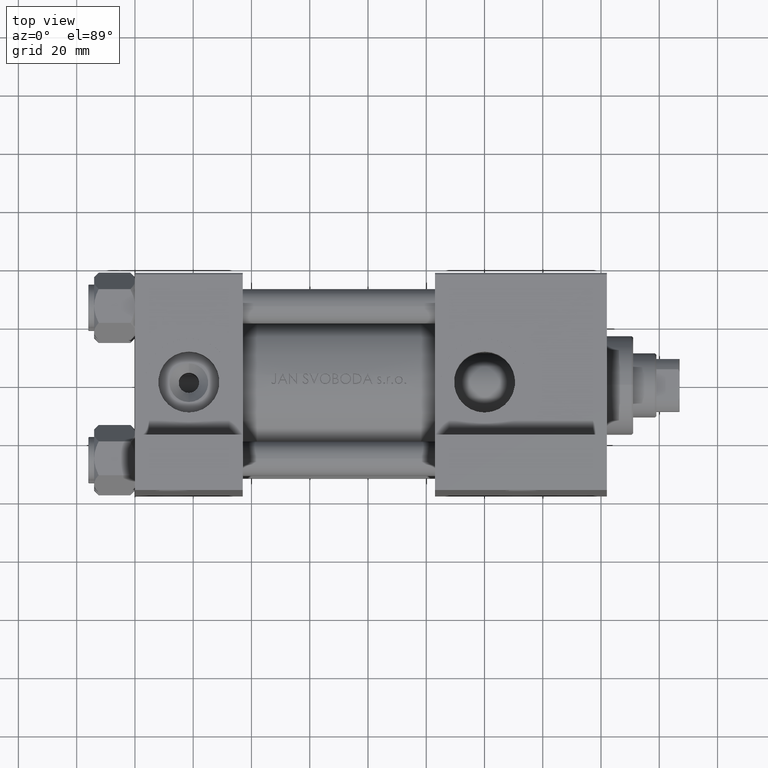
[diagram: clean part render]
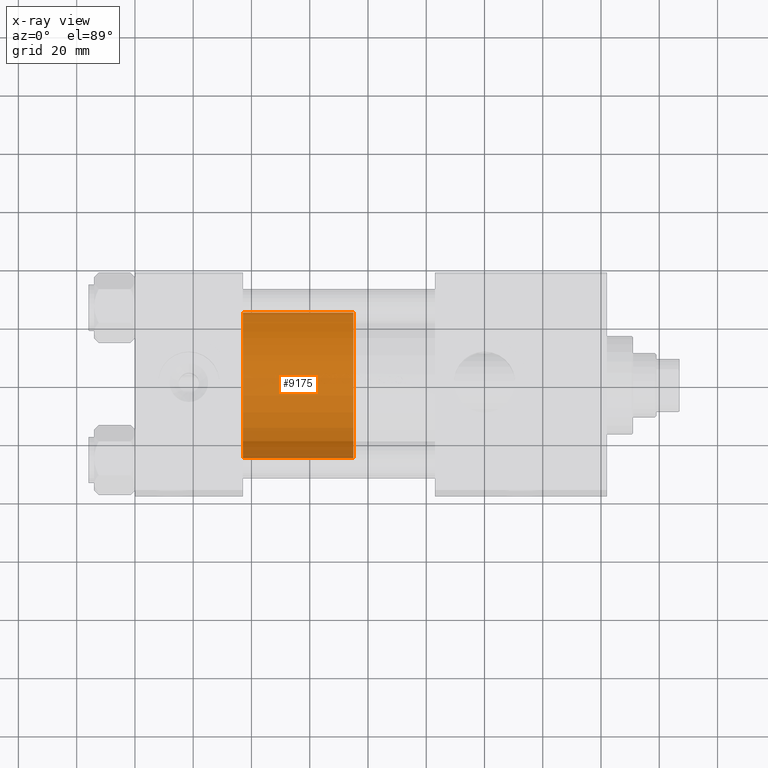
[diagram: x-ray — body ghosted, one internal face saturated and labeled with its STEP entity id]
A machine part, top view, then the same camera in x-ray: the body is ghosted and one INTERNAL B-rep face — a face not visible from any outside direction — is saturated and labeled: STEP entity #9175.
In plain terms, the highlighted cylindrical surface (partial cylindrical patch) has radius 25 mm, axis along (-1, 0, 0).
Its self-contained STEP definition (entity closure, byte-faithful):
#4188 = CARTESIAN_POINT ( 'NONE',  ( 25.00000000000000000, 3.061616997868383043E-15, 38.00000000000000000 ) ) ;
#4431 = CARTESIAN_POINT ( 'NONE',  ( 25.00000000000000000, 3.061616997868383043E-15, 0.000000000000000000 ) ) ;
#4873 = ORIENTED_EDGE ( 'NONE', *, *, #25804, .T. ) ;
#5623 = CIRCLE ( 'NONE', #19249, 25.00000000000000000 ) ;
#9175 = ADVANCED_FACE ( 'NONE', ( #25365 ), #21094, .T. ) ;
#12150 = DIRECTION ( 'NONE',  ( 1.000000000000000000, 0.000000000000000000, 0.000000000000000000 ) ) ;
#12435 = EDGE_CURVE ( 'NONE', #26329, #25644, #33185, .T. ) ;
#15018 = DIRECTION ( 'NONE',  ( -0.000000000000000000, -0.000000000000000000, -1.000000000000000000 ) ) ;
#16359 = CARTESIAN_POINT ( 'NONE',  ( 0.000000000000000000, 0.000000000000000000, 0.000000000000000000 ) ) ;
#19249 = AXIS2_PLACEMENT_3D ( 'NONE', #16359, #31586, #12150 ) ;
#20204 = VERTEX_POINT ( 'NONE', #4431 ) ;
#21094 = CYLINDRICAL_SURFACE ( 'NONE', #45052, 25.00000000000000000 ) ;
#22507 = DIRECTION ( 'NONE',  ( 1.000000000000000000, 0.000000000000000000, 0.000000000000000000 ) ) ;
#25033 = ORIENTED_EDGE ( 'NONE', *, *, #45535, .F. ) ;
#25365 = FACE_OUTER_BOUND ( 'NONE', #34100, .T. ) ;
#25644 = VERTEX_POINT ( 'NONE', #44059 ) ;
#25804 = EDGE_CURVE ( 'NONE', #20204, #25644, #5623, .T. ) ;
#26329 = VERTEX_POINT ( 'NONE', #32893 ) ;
#27473 = DIRECTION ( 'NONE',  ( 0.000000000000000000, 0.000000000000000000, 1.000000000000000000 ) ) ;
#29287 = VECTOR ( 'NONE', #36898, 1000.000000000000000 ) ;
#29755 = EDGE_CURVE ( 'NONE', #30076, #20204, #33233, .T. ) ;
#30076 = VERTEX_POINT ( 'NONE', #4188 ) ;
#31586 = DIRECTION ( 'NONE',  ( 0.000000000000000000, 0.000000000000000000, 1.000000000000000000 ) ) ;
#31809 = CIRCLE ( 'NONE', #38134, 25.00000000000000000 ) ;
#32893 = CARTESIAN_POINT ( 'NONE',  ( -25.00000000000000000, 0.000000000000000000, 38.00000000000000000 ) ) ;
#33088 = CARTESIAN_POINT ( 'NONE',  ( 0.000000000000000000, 0.000000000000000000, 38.00000000000000000 ) ) ;
#33185 = LINE ( 'NONE', #44868, #29287 ) ;
#33233 = LINE ( 'NONE', #33729, #37577 ) ;
#33729 = CARTESIAN_POINT ( 'NONE',  ( 25.00000000000000000, 3.061616997868383043E-15, 38.00000000000000000 ) ) ;
#34100 = EDGE_LOOP ( 'NONE', ( #25033, #39622, #4873, #37267 ) ) ;
#36898 = DIRECTION ( 'NONE',  ( -0.000000000000000000, -0.000000000000000000, -1.000000000000000000 ) ) ;
#37267 = ORIENTED_EDGE ( 'NONE', *, *, #12435, .F. ) ;
#37577 = VECTOR ( 'NONE', #15018, 1000.000000000000000 ) ;
#38134 = AXIS2_PLACEMENT_3D ( 'NONE', #41677, #27473, #22507 ) ;
#39622 = ORIENTED_EDGE ( 'NONE', *, *, #29755, .T. ) ;
#40279 = DIRECTION ( 'NONE',  ( -1.000000000000000000, 0.000000000000000000, 0.000000000000000000 ) ) ;
#41677 = CARTESIAN_POINT ( 'NONE',  ( 0.000000000000000000, 0.000000000000000000, 38.00000000000000000 ) ) ;
#44059 = CARTESIAN_POINT ( 'NONE',  ( -25.00000000000000000, 0.000000000000000000, 0.000000000000000000 ) ) ;
#44868 = CARTESIAN_POINT ( 'NONE',  ( -25.00000000000000000, 0.000000000000000000, 38.00000000000000000 ) ) ;
#45052 = AXIS2_PLACEMENT_3D ( 'NONE', #33088, #48252, #40279 ) ;
#45535 = EDGE_CURVE ( 'NONE', #30076, #26329, #31809, .T. ) ;
#48252 = DIRECTION ( 'NONE',  ( -0.000000000000000000, -0.000000000000000000, -1.000000000000000000 ) ) ;